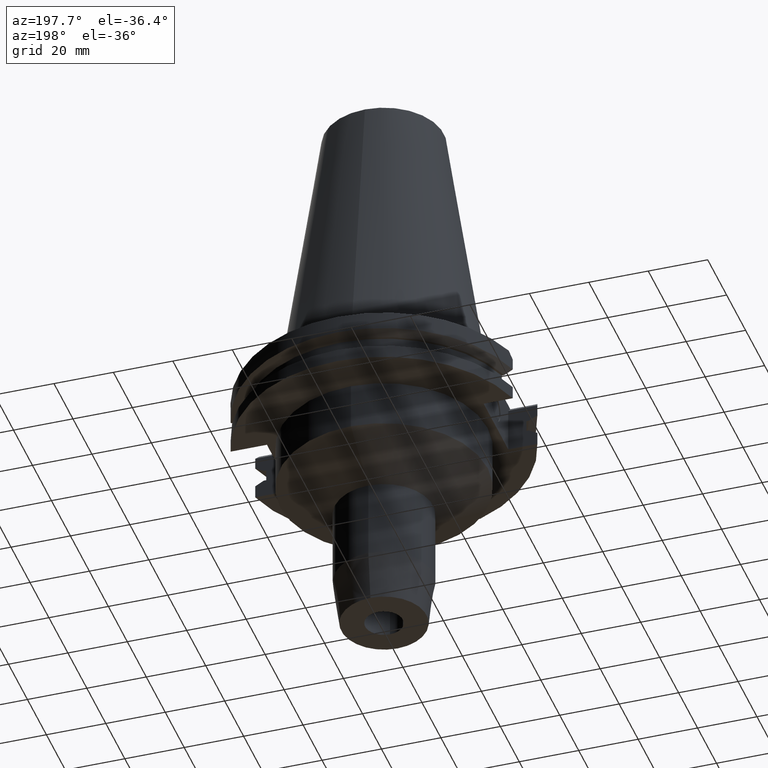
[diagram: clean part render]
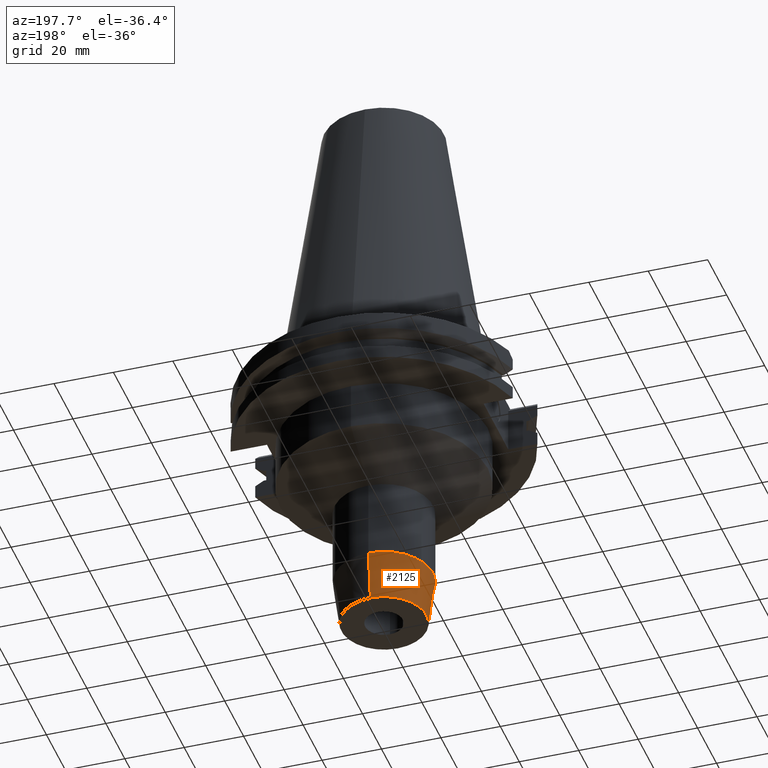
[diagram: same view with one face highlighted and labeled with its STEP entity id]
A machine part, auxiliary view. The second image highlights one B-rep face of the part: STEP entity #2125.
In plain terms, the highlighted conical surface has half-angle 7.5 deg.
Its self-contained STEP definition (entity closure, byte-faithful):
#922=DIRECTION('',(0.E0,-1.305261922200E-1,-9.914448613738E-1));
#923=VECTOR('',#922,1.650626562651E1);
#924=CARTESIAN_POINT('',(0.E0,1.65E1,-7.253494776413E1));
#925=LINE('',#924,#923);
#937=CARTESIAN_POINT('',(0.E0,0.E0,-7.253494776413E1));
#938=DIRECTION('',(0.E0,0.E0,1.E0));
#939=DIRECTION('',(0.E0,1.E0,0.E0));
#940=AXIS2_PLACEMENT_3D('',#937,#938,#939);
#945=DIRECTION('',(0.E0,1.305261922200E-1,-9.914448613738E-1));
#946=VECTOR('',#945,1.650626562651E1);
#947=CARTESIAN_POINT('',(0.E0,-1.65E1,-7.253494776413E1));
#948=LINE('',#947,#946);
#960=CARTESIAN_POINT('',(0.E0,0.E0,-8.89E1));
#961=DIRECTION('',(0.E0,0.E0,1.E0));
#962=DIRECTION('',(0.E0,1.E0,0.E0));
#963=AXIS2_PLACEMENT_3D('',#960,#961,#962);
#1260=CARTESIAN_POINT('',(0.E0,-1.43455E1,-8.89E1));
#1261=CARTESIAN_POINT('',(0.E0,1.43455E1,-8.89E1));
#1262=VERTEX_POINT('',#1260);
#1263=VERTEX_POINT('',#1261);
#1264=CARTESIAN_POINT('',(0.E0,1.65E1,-7.253494776413E1));
#1265=VERTEX_POINT('',#1264);
#1266=CARTESIAN_POINT('',(0.E0,-1.65E1,-7.253494776413E1));
#1267=VERTEX_POINT('',#1266);
#2113=CARTESIAN_POINT('',(0.E0,0.E0,-8.071747388207E1));
#2114=DIRECTION('',(0.E0,0.E0,1.E0));
#2115=DIRECTION('',(0.E0,1.E0,0.E0));
#2116=AXIS2_PLACEMENT_3D('',#2113,#2114,#2115);
#2117=CONICAL_SURFACE('',#2116,1.542275E1,7.5E0);
#2118=ORIENTED_EDGE('',*,*,#2103,.F.);
#2119=ORIENTED_EDGE('',*,*,#2080,.T.);
#2120=ORIENTED_EDGE('',*,*,#2107,.T.);
#2122=ORIENTED_EDGE('',*,*,#2121,.F.);
#2123=EDGE_LOOP('',(#2118,#2119,#2120,#2122));
#2124=FACE_OUTER_BOUND('',#2123,.F.);
#941=CIRCLE('',#940,1.65E1);
#964=CIRCLE('',#963,1.43455E1);
#2080=EDGE_CURVE('',#1265,#1267,#941,.T.);
#2103=EDGE_CURVE('',#1265,#1263,#925,.T.);
#2107=EDGE_CURVE('',#1267,#1262,#948,.T.);
#2121=EDGE_CURVE('',#1263,#1262,#964,.T.);
#2125=ADVANCED_FACE('',(#2124),#2117,.T.);